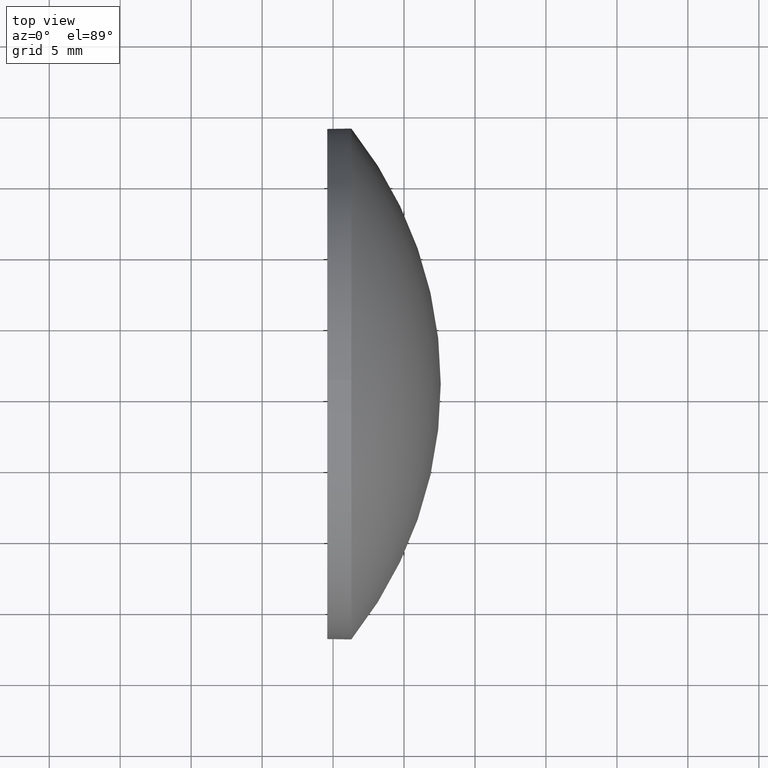
[diagram: clean part render]
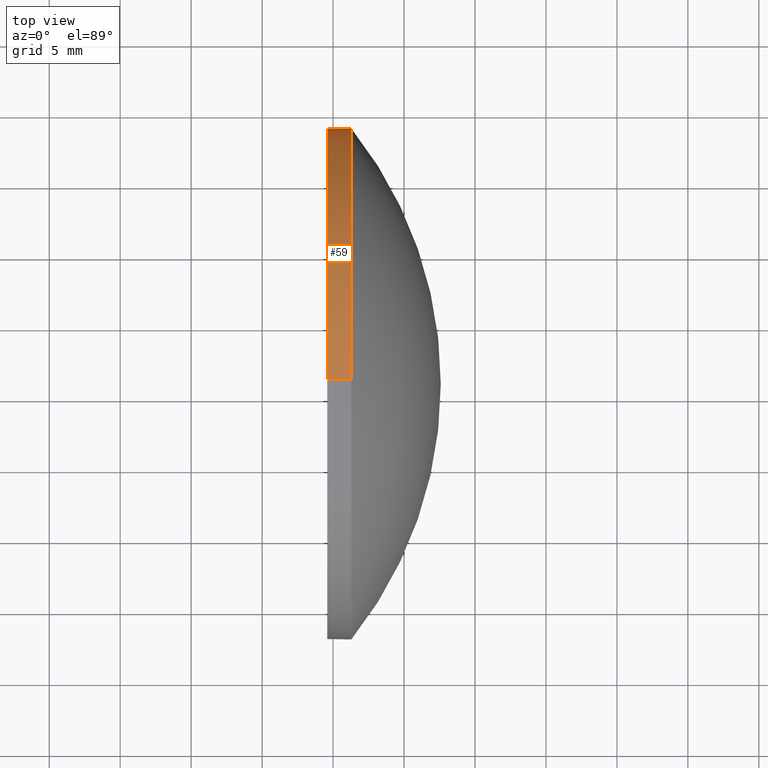
[diagram: same view with one face highlighted and labeled with its STEP entity id]
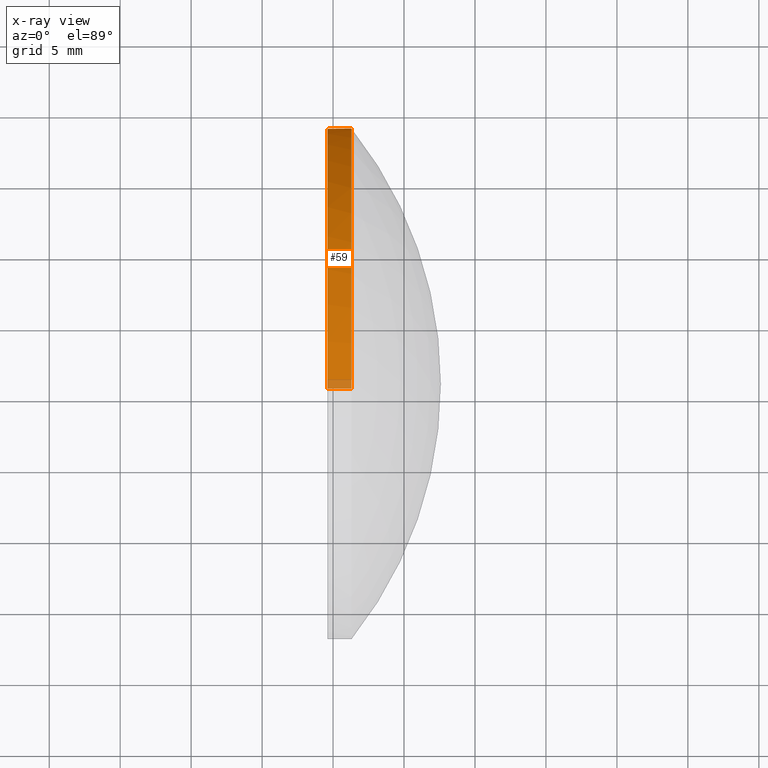
[diagram: x-ray of the same camera — body ghosted, the highlighted face saturated]
A machine part, top view. The second image highlights one B-rep face of the part: STEP entity #59.
The next image is the same camera in x-ray: the body ghosted, the highlighted face saturated — about 3% of this face is hidden behind the body in this view.
In plain terms, the highlighted cylindrical surface (partial cylindrical patch) has radius 18 mm, axis along (-1, -0, -0).
Its self-contained STEP definition (entity closure, byte-faithful):
#8 = CARTESIAN_POINT ( 'NONE',  ( 379.5886439777123100, 55.92268159127587500, 18.00000000000000400 ) ) ;
#13 = VERTEX_POINT ( 'NONE', #176 ) ;
#14 = LINE ( 'NONE', #131, #106 ) ;
#19 = CARTESIAN_POINT ( 'NONE',  ( 379.5886439777123100, 55.92268159127587500, 0.0000000000000000000 ) ) ;
#22 = CARTESIAN_POINT ( 'NONE',  ( 381.2886439777123000, 55.92268159127587500, 0.0000000000000000000 ) ) ;
#28 = EDGE_CURVE ( 'NONE', #49, #13, #137, .T. ) ;
#31 = DIRECTION ( 'NONE',  ( -1.000000000000000000, -0.0000000000000000000, -0.0000000000000000000 ) ) ;
#33 = CARTESIAN_POINT ( 'NONE',  ( 381.2886439777123000, 55.92268159127587500, 18.00000000000000400 ) ) ;
#38 = ORIENTED_EDGE ( 'NONE', *, *, #94, .F. ) ;
#41 = AXIS2_PLACEMENT_3D ( 'NONE', #179, #114, #86 ) ;
#46 = AXIS2_PLACEMENT_3D ( 'NONE', #22, #31, #74 ) ;
#49 = VERTEX_POINT ( 'NONE', #113 ) ;
#51 = AXIS2_PLACEMENT_3D ( 'NONE', #118, #153, #180 ) ;
#58 = ORIENTED_EDGE ( 'NONE', *, *, #87, .T. ) ;
#59 = ADVANCED_FACE ( 'NONE', ( #135 ), #178, .T. ) ;
#61 = AXIS2_PLACEMENT_3D ( 'NONE', #19, #171, #141 ) ;
#74 = DIRECTION ( 'NONE',  ( 0.0000000000000000000, 0.0000000000000000000, 1.000000000000000000 ) ) ;
#76 = CIRCLE ( 'NONE', #61, 18.00000000000000400 ) ;
#78 = VECTOR ( 'NONE', #83, 1000.000000000000000 ) ;
#81 = VERTEX_POINT ( 'NONE', #33 ) ;
#83 = DIRECTION ( 'NONE',  ( -1.000000000000000000, -0.0000000000000000000, -0.0000000000000000000 ) ) ;
#86 = DIRECTION ( 'NONE',  ( 0.0000000000000000000, 0.0000000000000000000, 1.000000000000000000 ) ) ;
#87 = EDGE_CURVE ( 'NONE', #81, #89, #105, .T. ) ;
#89 = VERTEX_POINT ( 'NONE', #142 ) ;
#94 = EDGE_CURVE ( 'NONE', #161, #13, #76, .T. ) ;
#97 = CARTESIAN_POINT ( 'NONE',  ( 374.0107276786080800, 55.92268159127587500, -18.00000000000000400 ) ) ;
#105 = CIRCLE ( 'NONE', #46, 18.00000000000000400 ) ;
#106 = VECTOR ( 'NONE', #165, 1000.000000000000000 ) ;
#111 = EDGE_CURVE ( 'NONE', #81, #161, #14, .T. ) ;
#113 = CARTESIAN_POINT ( 'NONE',  ( 381.2886439777123000, 55.92268159127587500, -18.00000000000000400 ) ) ;
#114 = DIRECTION ( 'NONE',  ( -1.000000000000000000, -0.0000000000000000000, -0.0000000000000000000 ) ) ;
#118 = CARTESIAN_POINT ( 'NONE',  ( 374.0107276786080800, 55.92268159127587500, 0.0000000000000000000 ) ) ;
#128 = EDGE_LOOP ( 'NONE', ( #150, #159, #38, #139, #58 ) ) ;
#131 = CARTESIAN_POINT ( 'NONE',  ( 374.0107276786080800, 55.92268159127587500, 18.00000000000000400 ) ) ;
#135 = FACE_OUTER_BOUND ( 'NONE', #128, .T. ) ;
#137 = LINE ( 'NONE', #97, #78 ) ;
#139 = ORIENTED_EDGE ( 'NONE', *, *, #111, .F. ) ;
#141 = DIRECTION ( 'NONE',  ( 0.0000000000000000000, 0.0000000000000000000, 1.000000000000000000 ) ) ;
#142 = CARTESIAN_POINT ( 'NONE',  ( 381.2886439777123000, 73.92268159127586100, 0.0000000000000000000 ) ) ;
#150 = ORIENTED_EDGE ( 'NONE', *, *, #173, .T. ) ;
#153 = DIRECTION ( 'NONE',  ( -1.000000000000000000, -0.0000000000000000000, -0.0000000000000000000 ) ) ;
#158 = CIRCLE ( 'NONE', #41, 18.00000000000000400 ) ;
#159 = ORIENTED_EDGE ( 'NONE', *, *, #28, .T. ) ;
#161 = VERTEX_POINT ( 'NONE', #8 ) ;
#165 = DIRECTION ( 'NONE',  ( -1.000000000000000000, -0.0000000000000000000, -0.0000000000000000000 ) ) ;
#171 = DIRECTION ( 'NONE',  ( -1.000000000000000000, -0.0000000000000000000, -0.0000000000000000000 ) ) ;
#173 = EDGE_CURVE ( 'NONE', #89, #49, #158, .T. ) ;
#176 = CARTESIAN_POINT ( 'NONE',  ( 379.5886439777123100, 55.92268159127587500, -18.00000000000000400 ) ) ;
#178 = CYLINDRICAL_SURFACE ( 'NONE', #51, 18.00000000000000400 ) ;
#179 = CARTESIAN_POINT ( 'NONE',  ( 381.2886439777123000, 55.92268159127587500, 0.0000000000000000000 ) ) ;
#180 = DIRECTION ( 'NONE',  ( 0.0000000000000000000, 0.0000000000000000000, 1.000000000000000000 ) ) ;